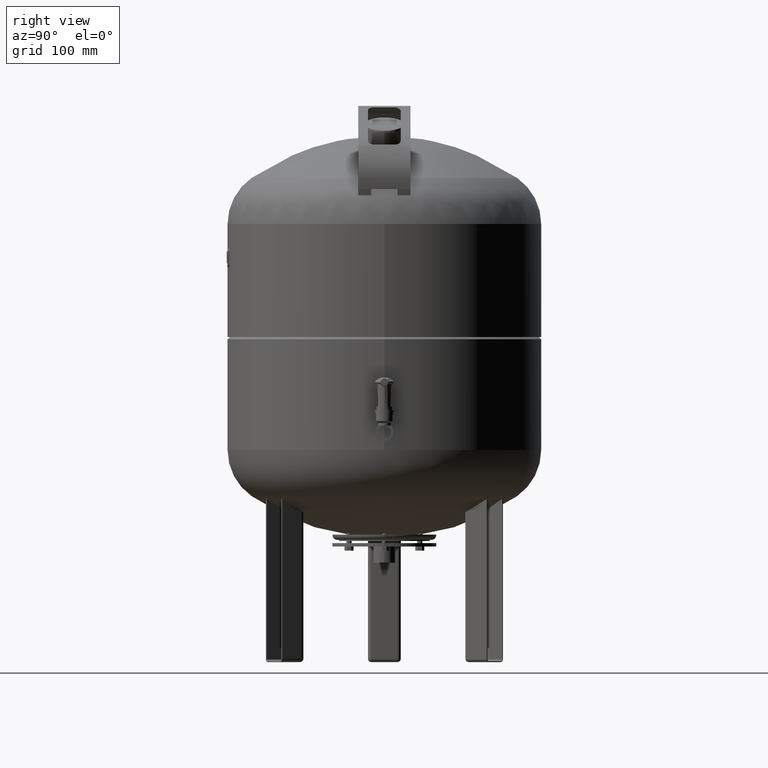
[diagram: clean part render]
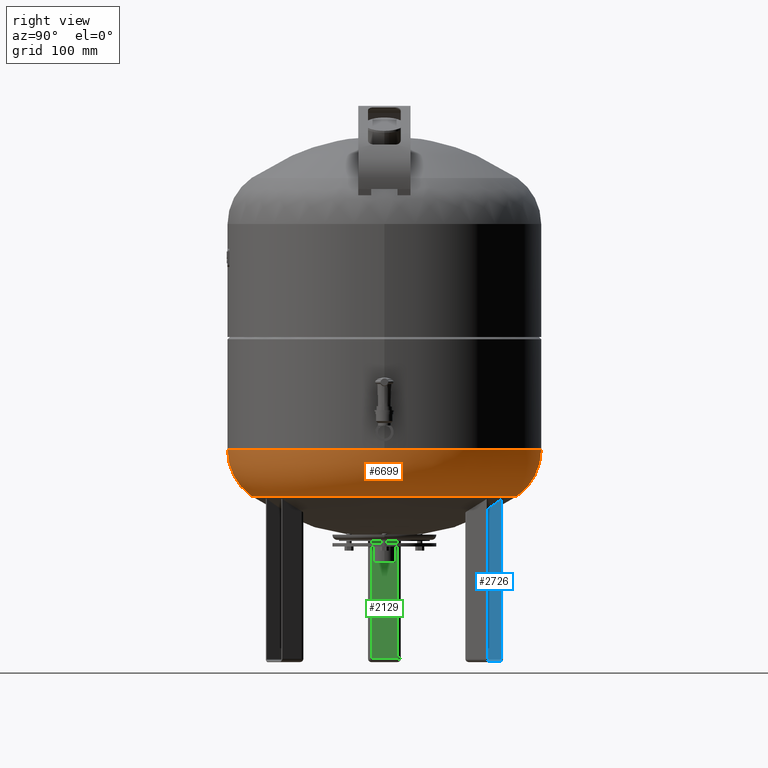
[diagram: same view with three faces highlighted in distinct colors, each labeled with its STEP entity id]
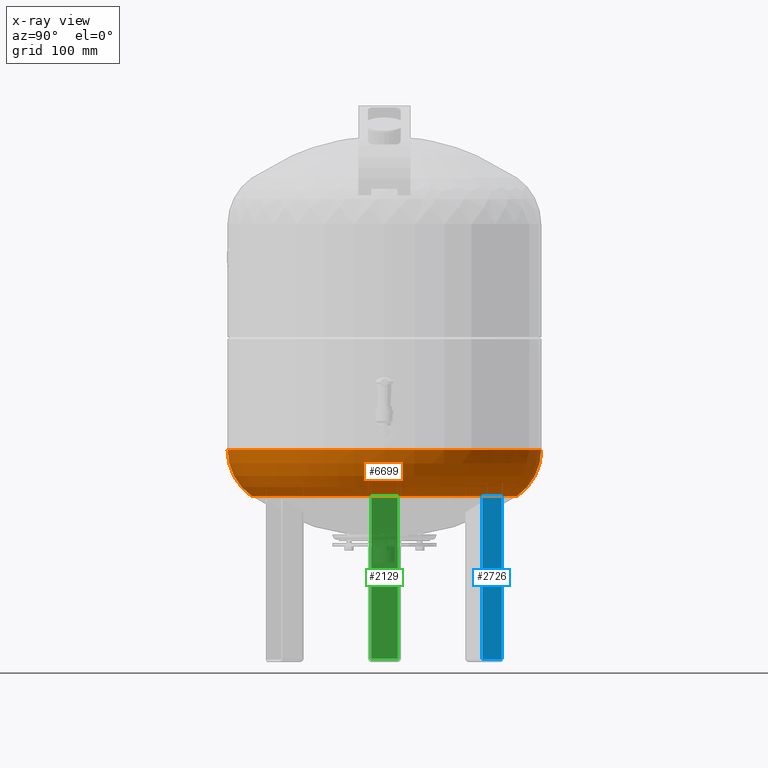
[diagram: x-ray of the same camera — body ghosted, the three highlighted faces saturated]
A machine part, right view with three faces highlighted in distinct colors.
The next image is the same camera in x-ray (body ghosted, the three faces saturated) — at least one of them is partly hidden behind the body in this view.
Their STEP definitions:

[orange] entity #6699 — the highlighted toroidal blend (fillet) surface has major radius 154 mm and minor (blend) radius 86 mm.
#6585=CARTESIAN_POINT('',(240.0,2.947248E-014,324.553983896047730));
#6586=VERTEX_POINT('',#6585);
#6593=CARTESIAN_POINT('',(-3.818310E-014,240.0,324.553983896047840));
#6594=VERTEX_POINT('',#6593);
#6595=CARTESIAN_POINT('',(2.963866E-017,8.193183E-017,324.553983896047730));
#6596=DIRECTION('',(0.0,0.0,1.0));
#6597=DIRECTION('',(-1.0,0.0,0.0));
#6598=AXIS2_PLACEMENT_3D('',#6595,#6596,#6597);
#6599=CIRCLE('',#6598,240.0);
#6600=EDGE_CURVE('',#6586,#6594,#6599,.T.);
#6617=CARTESIAN_POINT('',(-8.792549E-015,-240.0,324.553983896047610));
#6618=VERTEX_POINT('',#6617);
#6619=CARTESIAN_POINT('',(-4.111121E-015,-203.325884543761560,254.105725479139470));
#6620=VERTEX_POINT('',#6619);
#6621=CARTESIAN_POINT('',(-8.792549E-015,-153.999999999999970,324.553983896047780));
#6622=DIRECTION('',(1.0,0.0,0.0));
#6623=DIRECTION('',(0.0,-1.0,0.0));
#6624=AXIS2_PLACEMENT_3D('',#6621,#6622,#6623);
#6625=CIRCLE('',#6624,86.0);
#6626=EDGE_CURVE('',#6618,#6620,#6625,.T.);
#6636=CARTESIAN_POINT('',(-2.901054E-014,203.325884543761560,254.105725479139550));
#6637=VERTEX_POINT('',#6636);
#6638=CARTESIAN_POINT('',(-2.765149E-014,153.999999999999970,324.553983896047900));
#6639=DIRECTION('',(-1.0,0.0,0.0));
#6640=DIRECTION('',(0.0,1.0,0.0));
#6641=AXIS2_PLACEMENT_3D('',#6638,#6639,#6640);
#6642=CIRCLE('',#6641,86.0);
#6643=EDGE_CURVE('',#6594,#6637,#6642,.T.);
#6671=CARTESIAN_POINT('',(4.711066E-015,1.302307E-014,254.105725479139520));
#6672=DIRECTION('',(0.0,0.0,1.0));
#6673=DIRECTION('',(-1.0,0.0,0.0));
#6674=AXIS2_PLACEMENT_3D('',#6671,#6672,#6673);
#6675=CIRCLE('',#6674,203.325884543761560);
#6676=EDGE_CURVE('',#6620,#6637,#6675,.T.);
#6681=CARTESIAN_POINT('',(-8.792549E-015,8.193183E-017,324.553983896047840));
#6682=DIRECTION('',(-6.645200E-017,-1.836970E-016,1.0));
#6683=DIRECTION('',(0.0,-1.0,0.0));
#6684=AXIS2_PLACEMENT_3D('',#6681,#6682,#6683);
#6685=TOROIDAL_SURFACE('',#6684,153.999999999999970,86.0);
#6686=ORIENTED_EDGE('',*,*,#6626,.T.);
#6687=ORIENTED_EDGE('',*,*,#6676,.T.);
#6688=ORIENTED_EDGE('',*,*,#6643,.F.);
#6689=ORIENTED_EDGE('',*,*,#6600,.F.);
#6690=CARTESIAN_POINT('',(2.963866E-017,8.193183E-017,324.553983896047730));
#6691=DIRECTION('',(0.0,0.0,1.0));
#6692=DIRECTION('',(-1.0,0.0,0.0));
#6693=AXIS2_PLACEMENT_3D('',#6690,#6691,#6692);
#6694=CIRCLE('',#6693,240.0);
#6695=EDGE_CURVE('',#6618,#6586,#6694,.T.);
#6696=ORIENTED_EDGE('',*,*,#6695,.F.);
#6697=EDGE_LOOP('',(#6686,#6687,#6688,#6689,#6696));
#6698=FACE_OUTER_BOUND('',#6697,.T.);
#6699=ADVANCED_FACE('',(#6698),#6685,.T.);

[blue] entity #2726 — the highlighted planar face has unit normal (-0.866, 0.5, 0).
#2344=CARTESIAN_POINT('',(60.764428414850144,150.247077307402440,274.0));
#2345=VERTEX_POINT('',#2344);
#2353=CARTESIAN_POINT('',(77.764428414850144,179.691941036073330,274.0));
#2354=VERTEX_POINT('',#2353);
#2355=CARTESIAN_POINT('',(77.764428414850144,179.691941036073330,274.0));
#2356=DIRECTION('',(-0.500000000000000,-0.866025403784438,0.0));
#2357=VECTOR('',#2356,33.999999999999986);
#2358=LINE('',#2355,#2357);
#2359=EDGE_CURVE('',#2354,#2345,#2358,.T.);
#2444=CARTESIAN_POINT('',(77.764428414850144,179.691941036073330,4.500000000000004));
#2445=VERTEX_POINT('',#2444);
#2446=CARTESIAN_POINT('',(77.764428414850144,179.691941036073330,274.0));
#2447=DIRECTION('',(0.0,0.0,-1.0));
#2448=VECTOR('',#2447,269.500000000000000);
#2449=LINE('',#2446,#2448);
#2450=EDGE_CURVE('',#2354,#2445,#2449,.T.);
#2691=CARTESIAN_POINT('',(60.764428414850137,150.247077307402440,4.500000000000004));
#2692=VERTEX_POINT('',#2691);
#2693=CARTESIAN_POINT('',(77.764428414850144,179.691941036073330,4.500000000000004));
#2694=DIRECTION('',(-0.500000000000000,-0.866025403784438,0.0));
#2695=VECTOR('',#2694,33.999999999999986);
#2696=LINE('',#2693,#2695);
#2697=EDGE_CURVE('',#2445,#2692,#2696,.T.);
#2710=CARTESIAN_POINT('',(59.514428414850137,148.082013797941330,2.000000000000004));
#2711=DIRECTION('',(-0.866025403784439,0.500000000000000,1.836970E-016));
#2712=DIRECTION('',(-0.500000000000000,-0.866025403784439,0.0));
#2713=AXIS2_PLACEMENT_3D('',#2710,#2711,#2712);
#2714=PLANE('',#2713);
#2715=ORIENTED_EDGE('',*,*,#2450,.F.);
#2716=ORIENTED_EDGE('',*,*,#2359,.T.);
#2717=CARTESIAN_POINT('',(60.764428414850137,150.247077307402440,4.500000000000004));
#2718=DIRECTION('',(0.0,0.0,1.0));
#2719=VECTOR('',#2718,269.500000000000000);
#2720=LINE('',#2717,#2719);
#2721=EDGE_CURVE('',#2692,#2345,#2720,.T.);
#2722=ORIENTED_EDGE('',*,*,#2721,.F.);
#2723=ORIENTED_EDGE('',*,*,#2697,.F.);
#2724=EDGE_LOOP('',(#2715,#2716,#2722,#2723));
#2725=FACE_OUTER_BOUND('',#2724,.T.);
#2726=ADVANCED_FACE('',(#2725),#2714,.F.);

[green] entity #2129 — the highlighted planar face has unit normal (1, 0, 0).
#1349=CARTESIAN_POINT('',(-155.500000000000000,-20.000000000000004,274.0));
#1350=VERTEX_POINT('',#1349);
#1358=CARTESIAN_POINT('',(-155.500000000000000,19.999999999999996,274.0));
#1359=VERTEX_POINT('',#1358);
#1360=CARTESIAN_POINT('',(-155.500000000000000,19.999999999999996,274.0));
#1361=DIRECTION('',(0.0,-1.0,0.0));
#1362=VECTOR('',#1361,40.0);
#1363=LINE('',#1360,#1362);
#1364=EDGE_CURVE('',#1359,#1350,#1363,.T.);
#1994=CARTESIAN_POINT('',(-155.500000000000000,20.0,4.999999999999996));
#1995=VERTEX_POINT('',#1994);
#2003=CARTESIAN_POINT('',(-155.500000000000000,-20.0,5.000000000000004));
#2004=VERTEX_POINT('',#2003);
#2005=CARTESIAN_POINT('',(-155.500000000000000,20.0,4.999999999999996));
#2006=DIRECTION('',(0.0,-1.0,0.0));
#2007=VECTOR('',#2006,40.0);
#2008=LINE('',#2005,#2007);
#2009=EDGE_CURVE('',#1995,#2004,#2008,.T.);
#2097=CARTESIAN_POINT('',(-155.500000000000000,-20.0,5.000000000000004));
#2098=DIRECTION('',(0.0,0.0,1.0));
#2099=VECTOR('',#2098,269.0);
#2100=LINE('',#2097,#2099);
#2101=EDGE_CURVE('',#2004,#1350,#2100,.T.);
#2113=CARTESIAN_POINT('',(-155.500000000000000,25.0,-4.592425E-015));
#2114=DIRECTION('',(1.0,0.0,0.0));
#2115=DIRECTION('',(0.0,1.0,0.0));
#2116=AXIS2_PLACEMENT_3D('',#2113,#2114,#2115);
#2117=PLANE('',#2116);
#2118=ORIENTED_EDGE('',*,*,#2009,.F.);
#2119=CARTESIAN_POINT('',(-155.500000000000000,20.0,4.999999999999996));
#2120=DIRECTION('',(0.0,0.0,1.0));
#2121=VECTOR('',#2120,269.0);
#2122=LINE('',#2119,#2121);
#2123=EDGE_CURVE('',#1995,#1359,#2122,.T.);
#2124=ORIENTED_EDGE('',*,*,#2123,.T.);
#2125=ORIENTED_EDGE('',*,*,#1364,.T.);
#2126=ORIENTED_EDGE('',*,*,#2101,.F.);
#2127=EDGE_LOOP('',(#2118,#2124,#2125,#2126));
#2128=FACE_OUTER_BOUND('',#2127,.T.);
#2129=ADVANCED_FACE('',(#2128),#2117,.T.);